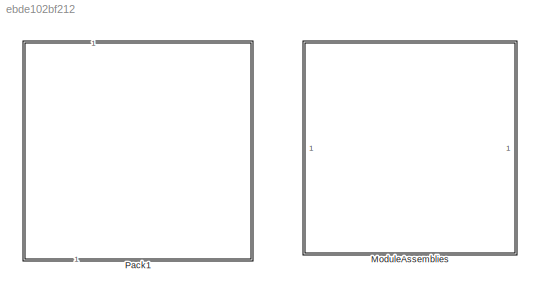
MODEL slx_ebde102bf212
KIND library
CONFIG AbsTol = auto
CONFIG EnableMultiTasking = off
CONFIG FixedStep = auto
CONFIG MaxStep = auto
CONFIG MinStep = auto
CONFIG RelTol = 1e-3
CONFIG SampleTimeConstraint = Unconstrained
CONFIG SolverName = VariableStepAuto
CONFIG StartTime = 0.0
CONFIG StopTime = 10.0
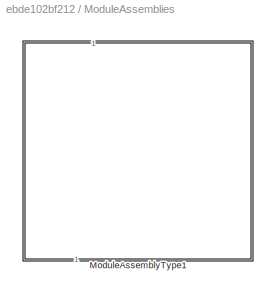
BLOCK [SubSystem] ModuleAssemblies
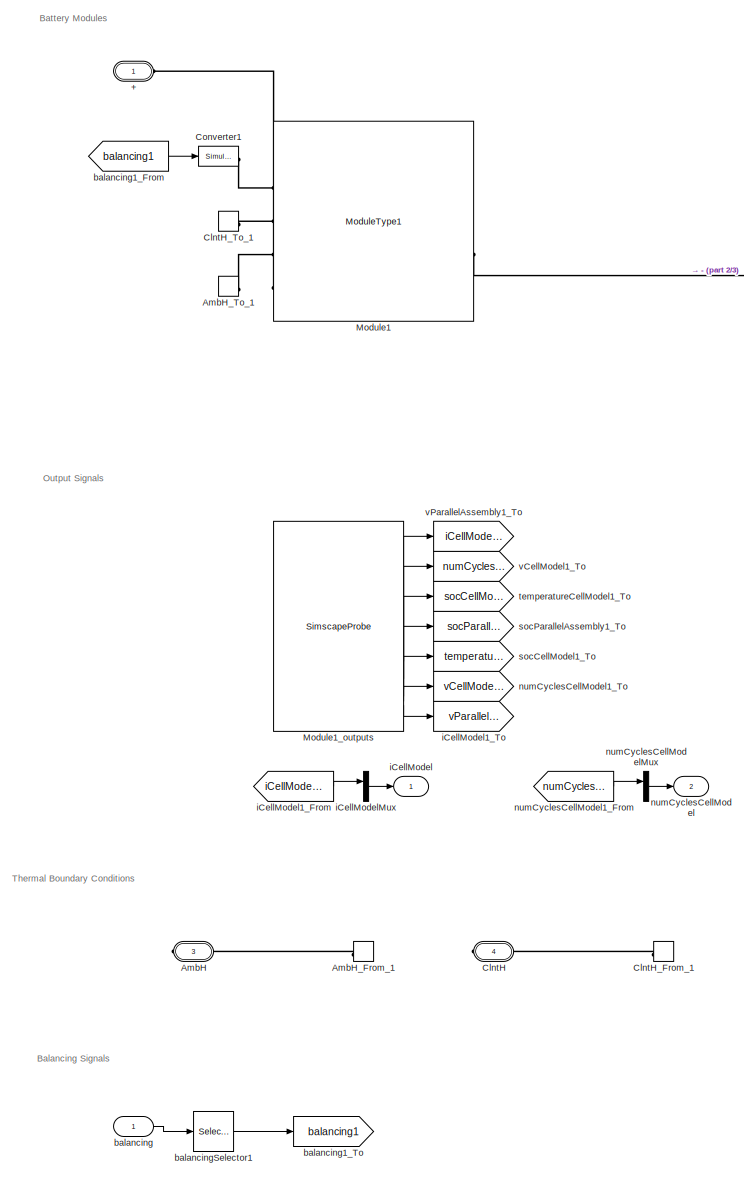
[diagram: ModuleAssemblies/ModuleAssemblyType1 - part 1/3, left side, full height]
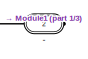
[diagram: ModuleAssemblies/ModuleAssemblyType1 - part 2/3, top right region]
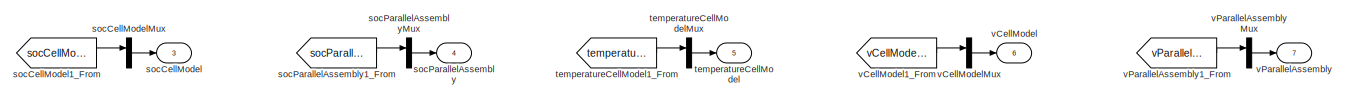
[diagram: ModuleAssemblies/ModuleAssemblyType1 - part 3/3, bottom center region]
BLOCK [SubSystem] ModuleAssemblies/ModuleAssemblyType1
  CopyFcn = battery_builder_rtmsupport('copyfcn',gcbh);
  LoadFcn = battery_builder_rtmsupport('loadfcn',gcbh);
  PortSchema = {"entries":[{"content":{"sides":[{"content":{"connectorIds":["LConn1"]},"type":"ConnectorPlacement.EquallySpacedRectSide","uuid":"76a56672-e65c-4ffc-8b13-b848ca693a1f"},{"content":{"connectorIds":["RConn1","RConn2","RConn3"],"side":"RIGHT"},"type":"ConnectorPlacement.EquallySpacedRectSide","uuid":"f1a9ec30-6091-40d6-9680-a73eaaaaa74d"},{"content":{"connectorIds":["In1"],"side":"TOP"},"type":"Conne...<+460ch>  <repeated x3 — deduplicated; at blocks: ModuleAssemblyType1, Pack1, ModuleAssembly1>
  PreCopyFcn = battery_builder_rtmsupport('precopyfcn',gcbh);
  PreDeleteFcn = battery_builder_rtmsupport('predeletefcn',gcbh);
BLOCK [PMIOPort] ModuleAssemblies/ModuleAssemblyType1/+
  Side = Left
BLOCK [PMIOPort] ModuleAssemblies/ModuleAssemblyType1/-
  Port = 2
  Side = Right
BLOCK [PMIOPort] ModuleAssemblies/ModuleAssemblyType1/AmbH
  Port = 3
  Side = Right
BLOCK [ConnectionLabel] ModuleAssemblies/ModuleAssemblyType1/AmbH_From_1
  Label = ambH_1
BLOCK [ConnectionLabel] ModuleAssemblies/ModuleAssemblyType1/AmbH_To_1
  Label = ambH_1
BLOCK [PMIOPort] ModuleAssemblies/ModuleAssemblyType1/ClntH
  Port = 4
  Side = Right
BLOCK [ConnectionLabel] ModuleAssemblies/ModuleAssemblyType1/ClntH_From_1
  Label = clntH_1
BLOCK [ConnectionLabel] ModuleAssemblies/ModuleAssemblyType1/ClntH_To_1
  Label = clntH_1
BLOCK [Reference] ModuleAssemblies/ModuleAssemblyType1/Converter1  REF=nesl_utility/Simulink-PS
Converter
  SourceBlock = nesl_utility/Simulink-PS\nConverter
  SourceType = Simulink-PS\nConverter
BLOCK [Reference] ModuleAssemblies/ModuleAssemblyType1/Module1  REF=GD_Batterymodel_4_lib/Modules/ModuleType1
  SourceBlock = GD_Batterymodel_4_lib/Modules/ModuleType1
  SourceType = ModuleType1
BLOCK [SimscapeProbe] ModuleAssemblies/ModuleAssemblyType1/Module1_outputs
  BoundBlock = 3
  Variables = {iCellModel, numCyclesCellModel, socCellModel, socParallelAssembly, temperatureCellModel, vCellModel, vParallelAssembly}
BLOCK [Inport] ModuleAssemblies/ModuleAssemblyType1/balancing
  PortDimensions = 14
BLOCK [From] ModuleAssemblies/ModuleAssemblyType1/balancing1_From
  GotoTag = balancing1
BLOCK [Goto] ModuleAssemblies/ModuleAssemblyType1/balancing1_To
  GotoTag = balancing1
BLOCK [Selector] ModuleAssemblies/ModuleAssemblyType1/balancingSelector1
  IndexOptions = Index vector (dialog)
  Indices = [1   2   3   4   5   6   7   8   9  10  11  12  13  14]
  InputPortWidth = 14
  OutputSizes = 1
BLOCK [Outport] ModuleAssemblies/ModuleAssemblyType1/iCellModel
BLOCK [From] ModuleAssemblies/ModuleAssemblyType1/iCellModel1_From
  GotoTag = iCellModel1
BLOCK [Goto] ModuleAssemblies/ModuleAssemblyType1/iCellModel1_To
  GotoTag = vParallelAssembly1
BLOCK [Mux] ModuleAssemblies/ModuleAssemblyType1/iCellModelMux
  DisplayOption = bar
  Inputs = 1
BLOCK [Outport] ModuleAssemblies/ModuleAssemblyType1/numCyclesCellModel
  Port = 2
BLOCK [From] ModuleAssemblies/ModuleAssemblyType1/numCyclesCellModel1_From
  GotoTag = numCyclesCellModel1
BLOCK [Goto] ModuleAssemblies/ModuleAssemblyType1/numCyclesCellModel1_To
  GotoTag = vCellModel1
BLOCK [Mux] ModuleAssemblies/ModuleAssemblyType1/numCyclesCellModelMux
  DisplayOption = bar
  Inputs = 1
BLOCK [Outport] ModuleAssemblies/ModuleAssemblyType1/socCellModel
  Port = 3
BLOCK [From] ModuleAssemblies/ModuleAssemblyType1/socCellModel1_From
  GotoTag = socCellModel1
BLOCK [Goto] ModuleAssemblies/ModuleAssemblyType1/socCellModel1_To
  GotoTag = temperatureCellModel1
BLOCK [Mux] ModuleAssemblies/ModuleAssemblyType1/socCellModelMux
  DisplayOption = bar
  Inputs = 1
BLOCK [Outport] ModuleAssemblies/ModuleAssemblyType1/socParallelAssembly
  Port = 4
BLOCK [From] ModuleAssemblies/ModuleAssemblyType1/socParallelAssembly1_From
  GotoTag = socParallelAssembly1
BLOCK [Goto] ModuleAssemblies/ModuleAssemblyType1/socParallelAssembly1_To
  GotoTag = socParallelAssembly1
BLOCK [Mux] ModuleAssemblies/ModuleAssemblyType1/socParallelAssemblyMux
  DisplayOption = bar
  Inputs = 1
BLOCK [Outport] ModuleAssemblies/ModuleAssemblyType1/temperatureCellModel
  Port = 5
BLOCK [From] ModuleAssemblies/ModuleAssemblyType1/temperatureCellModel1_From
  GotoTag = temperatureCellModel1
BLOCK [Goto] ModuleAssemblies/ModuleAssemblyType1/temperatureCellModel1_To
  GotoTag = socCellModel1
BLOCK [Mux] ModuleAssemblies/ModuleAssemblyType1/temperatureCellModelMux
  DisplayOption = bar
  Inputs = 1
BLOCK [Outport] ModuleAssemblies/ModuleAssemblyType1/vCellModel
  Port = 6
BLOCK [From] ModuleAssemblies/ModuleAssemblyType1/vCellModel1_From
  GotoTag = vCellModel1
BLOCK [Goto] ModuleAssemblies/ModuleAssemblyType1/vCellModel1_To
  GotoTag = numCyclesCellModel1
BLOCK [Mux] ModuleAssemblies/ModuleAssemblyType1/vCellModelMux
  DisplayOption = bar
  Inputs = 1
BLOCK [Outport] ModuleAssemblies/ModuleAssemblyType1/vParallelAssembly
  Port = 7
BLOCK [From] ModuleAssemblies/ModuleAssemblyType1/vParallelAssembly1_From
  GotoTag = vParallelAssembly1
BLOCK [Goto] ModuleAssemblies/ModuleAssemblyType1/vParallelAssembly1_To
  GotoTag = iCellModel1
BLOCK [Mux] ModuleAssemblies/ModuleAssemblyType1/vParallelAssemblyMux
  DisplayOption = bar
  Inputs = 1
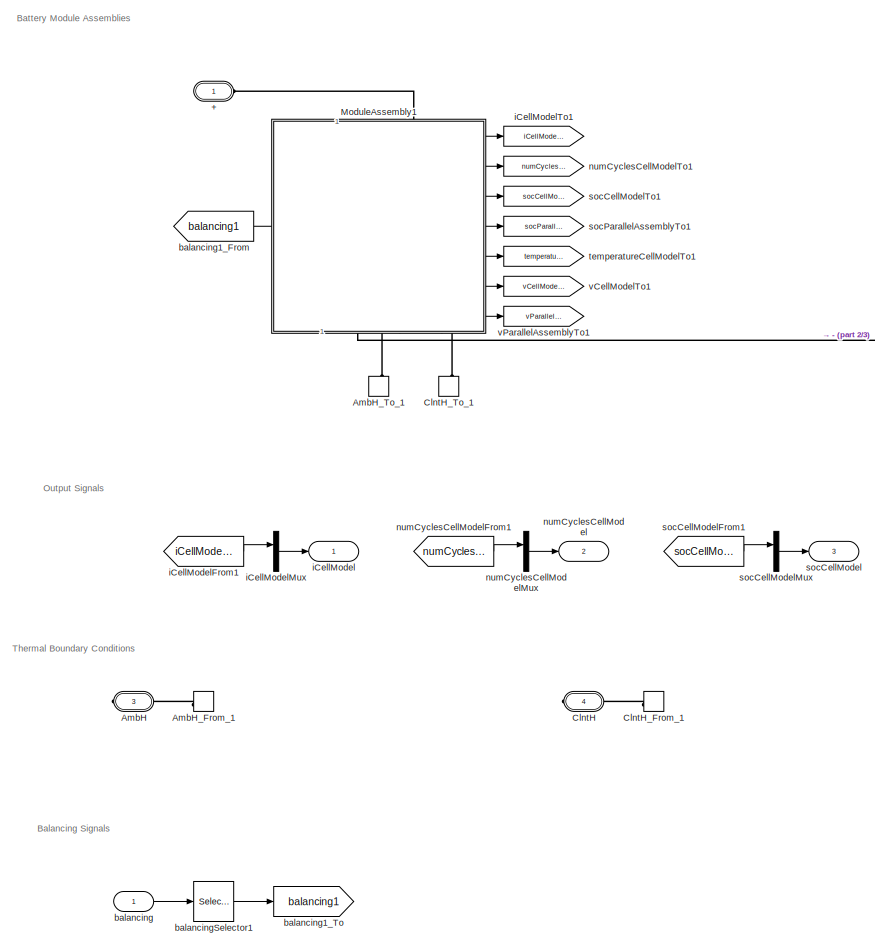
[diagram: Pack1 - part 1/3, left side, full height]
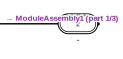
[diagram: Pack1 - part 2/3, top right region]
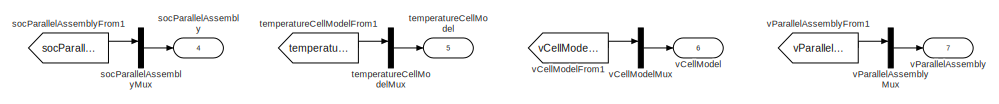
[diagram: Pack1 - part 3/3, central region]
BLOCK [SubSystem] Pack1
  CopyFcn = battery_builder_rtmsupport('copyfcn',gcbh);
  LoadFcn = battery_builder_rtmsupport('loadfcn',gcbh);
  PreCopyFcn = battery_builder_rtmsupport('precopyfcn',gcbh);
  PreDeleteFcn = battery_builder_rtmsupport('predeletefcn',gcbh);
BLOCK [PMIOPort] Pack1/+
  Side = Left
BLOCK [PMIOPort] Pack1/-
  Port = 2
  Side = Right
BLOCK [PMIOPort] Pack1/AmbH
  ConnectionType = Connection: foundation.thermal.thermal
  Port = 3
  Side = Right
BLOCK [ConnectionLabel] Pack1/AmbH_From_1
  Label = ambH_1
BLOCK [ConnectionLabel] Pack1/AmbH_To_1
  Label = ambH_1
  NameLocation = right
BLOCK [PMIOPort] Pack1/ClntH
  ConnectionType = Connection: foundation.thermal.thermal
  Port = 4
  Side = Right
BLOCK [ConnectionLabel] Pack1/ClntH_From_1
  Label = clntH_1
BLOCK [ConnectionLabel] Pack1/ClntH_To_1
  Label = clntH_1
  NameLocation = right
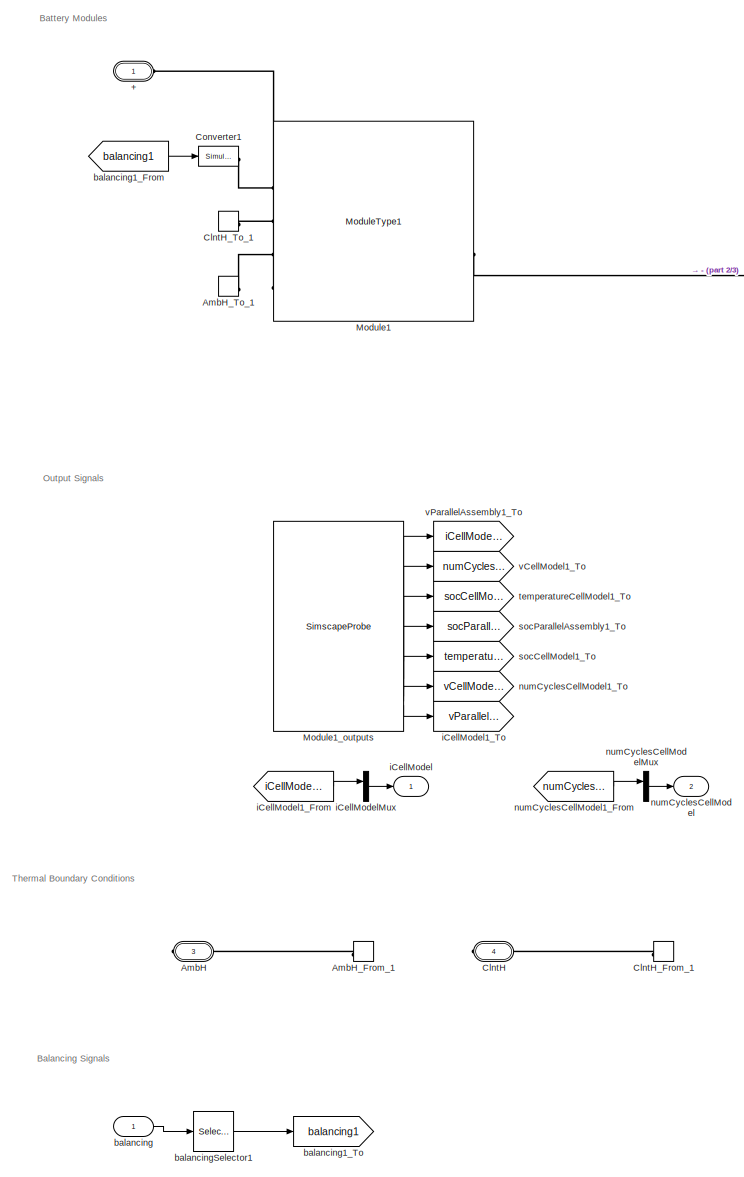
[diagram: Pack1/ModuleAssembly1 - part 1/3, left side, full height]
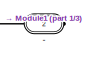
[diagram: Pack1/ModuleAssembly1 - part 2/3, top right region]
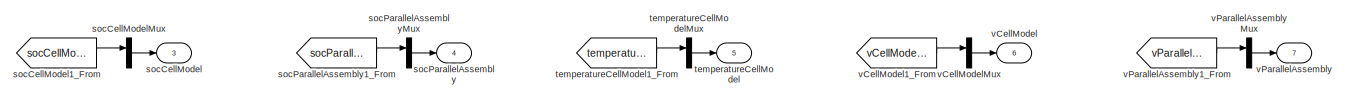
[diagram: Pack1/ModuleAssembly1 - part 3/3, bottom center region]
BLOCK [SubSystem] Pack1/ModuleAssembly1
  CopyFcn = battery_builder_rtmsupport('copyfcn',gcbh);
  LoadFcn = battery_builder_rtmsupport('loadfcn',gcbh);
  PreCopyFcn = battery_builder_rtmsupport('precopyfcn',gcbh);
  PreDeleteFcn = battery_builder_rtmsupport('predeletefcn',gcbh);
BLOCK [PMIOPort] Pack1/ModuleAssembly1/+
  Side = Left
BLOCK [PMIOPort] Pack1/ModuleAssembly1/-
  Port = 2
  Side = Right
BLOCK [PMIOPort] Pack1/ModuleAssembly1/AmbH
  Port = 3
  Side = Right
BLOCK [ConnectionLabel] Pack1/ModuleAssembly1/AmbH_From_1
  Label = ambH_1
BLOCK [ConnectionLabel] Pack1/ModuleAssembly1/AmbH_To_1
  Label = ambH_1
BLOCK [PMIOPort] Pack1/ModuleAssembly1/ClntH
  Port = 4
  Side = Right
BLOCK [ConnectionLabel] Pack1/ModuleAssembly1/ClntH_From_1
  Label = clntH_1
BLOCK [ConnectionLabel] Pack1/ModuleAssembly1/ClntH_To_1
  Label = clntH_1
BLOCK [Reference] Pack1/ModuleAssembly1/Converter1  REF=nesl_utility/Simulink-PS
Converter
  SourceBlock = nesl_utility/Simulink-PS\nConverter
  SourceType = Simulink-PS\nConverter
BLOCK [Reference] Pack1/ModuleAssembly1/Module1  REF=GD_Batterymodel_4_lib/Modules/ModuleType1
  SourceBlock = GD_Batterymodel_4_lib/Modules/ModuleType1
  SourceType = ModuleType1
BLOCK [SimscapeProbe] Pack1/ModuleAssembly1/Module1_outputs
  BoundBlock = 58
  Variables = {iCellModel, numCyclesCellModel, socCellModel, socParallelAssembly, temperatureCellModel, vCellModel, vParallelAssembly}
BLOCK [Inport] Pack1/ModuleAssembly1/balancing
  PortDimensions = 14
BLOCK [From] Pack1/ModuleAssembly1/balancing1_From
  GotoTag = balancing1
BLOCK [Goto] Pack1/ModuleAssembly1/balancing1_To
  GotoTag = balancing1
BLOCK [Selector] Pack1/ModuleAssembly1/balancingSelector1
  IndexOptions = Index vector (dialog)
  Indices = [1   2   3   4   5   6   7   8   9  10  11  12  13  14]
  InputPortWidth = 14
  OutputSizes = 1
BLOCK [Outport] Pack1/ModuleAssembly1/iCellModel
BLOCK [From] Pack1/ModuleAssembly1/iCellModel1_From
  GotoTag = iCellModel1
BLOCK [Goto] Pack1/ModuleAssembly1/iCellModel1_To
  GotoTag = vParallelAssembly1
BLOCK [Mux] Pack1/ModuleAssembly1/iCellModelMux
  DisplayOption = bar
  Inputs = 1
BLOCK [Outport] Pack1/ModuleAssembly1/numCyclesCellModel
  Port = 2
BLOCK [From] Pack1/ModuleAssembly1/numCyclesCellModel1_From
  GotoTag = numCyclesCellModel1
BLOCK [Goto] Pack1/ModuleAssembly1/numCyclesCellModel1_To
  GotoTag = vCellModel1
BLOCK [Mux] Pack1/ModuleAssembly1/numCyclesCellModelMux
  DisplayOption = bar
  Inputs = 1
BLOCK [Outport] Pack1/ModuleAssembly1/socCellModel
  Port = 3
BLOCK [From] Pack1/ModuleAssembly1/socCellModel1_From
  GotoTag = socCellModel1
BLOCK [Goto] Pack1/ModuleAssembly1/socCellModel1_To
  GotoTag = temperatureCellModel1
BLOCK [Mux] Pack1/ModuleAssembly1/socCellModelMux
  DisplayOption = bar
  Inputs = 1
BLOCK [Outport] Pack1/ModuleAssembly1/socParallelAssembly
  Port = 4
BLOCK [From] Pack1/ModuleAssembly1/socParallelAssembly1_From
  GotoTag = socParallelAssembly1
BLOCK [Goto] Pack1/ModuleAssembly1/socParallelAssembly1_To
  GotoTag = socParallelAssembly1
BLOCK [Mux] Pack1/ModuleAssembly1/socParallelAssemblyMux
  DisplayOption = bar
  Inputs = 1
BLOCK [Outport] Pack1/ModuleAssembly1/temperatureCellModel
  Port = 5
BLOCK [From] Pack1/ModuleAssembly1/temperatureCellModel1_From
  GotoTag = temperatureCellModel1
BLOCK [Goto] Pack1/ModuleAssembly1/temperatureCellModel1_To
  GotoTag = socCellModel1
BLOCK [Mux] Pack1/ModuleAssembly1/temperatureCellModelMux
  DisplayOption = bar
  Inputs = 1
BLOCK [Outport] Pack1/ModuleAssembly1/vCellModel
  Port = 6
BLOCK [From] Pack1/ModuleAssembly1/vCellModel1_From
  GotoTag = vCellModel1
BLOCK [Goto] Pack1/ModuleAssembly1/vCellModel1_To
  GotoTag = numCyclesCellModel1
BLOCK [Mux] Pack1/ModuleAssembly1/vCellModelMux
  DisplayOption = bar
  Inputs = 1
BLOCK [Outport] Pack1/ModuleAssembly1/vParallelAssembly
  Port = 7
BLOCK [From] Pack1/ModuleAssembly1/vParallelAssembly1_From
  GotoTag = vParallelAssembly1
BLOCK [Goto] Pack1/ModuleAssembly1/vParallelAssembly1_To
  GotoTag = iCellModel1
BLOCK [Mux] Pack1/ModuleAssembly1/vParallelAssemblyMux
  DisplayOption = bar
  Inputs = 1
BLOCK [Inport] Pack1/balancing
  PortDimensions = 14
BLOCK [From] Pack1/balancing1_From
  GotoTag = balancing1
BLOCK [Goto] Pack1/balancing1_To
  GotoTag = balancing1
BLOCK [Selector] Pack1/balancingSelector1
  IndexOptions = Index vector (dialog)
  Indices = [1   2   3   4   5   6   7   8   9  10  11  12  13  14]
  InputPortWidth = 14
  OutputSizes = 1
BLOCK [Outport] Pack1/iCellModel
BLOCK [From] Pack1/iCellModelFrom1
  GotoTag = iCellModel1
BLOCK [Mux] Pack1/iCellModelMux
  DisplayOption = bar
  Inputs = 1
BLOCK [Goto] Pack1/iCellModelTo1
  GotoTag = iCellModel1
BLOCK [Outport] Pack1/numCyclesCellModel
  Port = 2
BLOCK [From] Pack1/numCyclesCellModelFrom1
  GotoTag = numCyclesCellModel1
BLOCK [Mux] Pack1/numCyclesCellModelMux
  DisplayOption = bar
  Inputs = 1
BLOCK [Goto] Pack1/numCyclesCellModelTo1
  GotoTag = numCyclesCellModel1
BLOCK [Outport] Pack1/socCellModel
  Port = 3
BLOCK [From] Pack1/socCellModelFrom1
  GotoTag = socCellModel1
BLOCK [Mux] Pack1/socCellModelMux
  DisplayOption = bar
  Inputs = 1
BLOCK [Goto] Pack1/socCellModelTo1
  GotoTag = socCellModel1
BLOCK [Outport] Pack1/socParallelAssembly
  Port = 4
BLOCK [From] Pack1/socParallelAssemblyFrom1
  GotoTag = socParallelAssembly1
BLOCK [Mux] Pack1/socParallelAssemblyMux
  DisplayOption = bar
  Inputs = 1
BLOCK [Goto] Pack1/socParallelAssemblyTo1
  GotoTag = socParallelAssembly1
BLOCK [Outport] Pack1/temperatureCellModel
  Port = 5
BLOCK [From] Pack1/temperatureCellModelFrom1
  GotoTag = temperatureCellModel1
BLOCK [Mux] Pack1/temperatureCellModelMux
  DisplayOption = bar
  Inputs = 1
BLOCK [Goto] Pack1/temperatureCellModelTo1
  GotoTag = temperatureCellModel1
BLOCK [Outport] Pack1/vCellModel
  Port = 6
BLOCK [From] Pack1/vCellModelFrom1
  GotoTag = vCellModel1
BLOCK [Mux] Pack1/vCellModelMux
  DisplayOption = bar
  Inputs = 1
BLOCK [Goto] Pack1/vCellModelTo1
  GotoTag = vCellModel1
BLOCK [Outport] Pack1/vParallelAssembly
  Port = 7
BLOCK [From] Pack1/vParallelAssemblyFrom1
  GotoTag = vParallelAssembly1
BLOCK [Mux] Pack1/vParallelAssemblyMux
  DisplayOption = bar
  Inputs = 1
BLOCK [Goto] Pack1/vParallelAssemblyTo1
  GotoTag = vParallelAssembly1
ANNOTATION ModuleAssemblies/ModuleAssemblyType1: Balancing Signals
ANNOTATION ModuleAssemblies/ModuleAssemblyType1: Battery Modules
ANNOTATION ModuleAssemblies/ModuleAssemblyType1: Output Signals
ANNOTATION ModuleAssemblies/ModuleAssemblyType1: Thermal Boundary Conditions
ANNOTATION Pack1: Balancing Signals
ANNOTATION Pack1: Battery Module Assemblies
ANNOTATION Pack1: Output Signals
ANNOTATION Pack1: Thermal Boundary Conditions
ANNOTATION Pack1/ModuleAssembly1: Balancing Signals
ANNOTATION Pack1/ModuleAssembly1: Battery Modules
ANNOTATION Pack1/ModuleAssembly1: Output Signals
ANNOTATION Pack1/ModuleAssembly1: Thermal Boundary Conditions
LINE ModuleAssemblies/ModuleAssemblyType1/Module1_outputs:1 -> ModuleAssemblies/ModuleAssemblyType1/vParallelAssembly1_To:1
LINE ModuleAssemblies/ModuleAssemblyType1/Module1_outputs:2 -> ModuleAssemblies/ModuleAssemblyType1/vCellModel1_To:1
LINE ModuleAssemblies/ModuleAssemblyType1/Module1_outputs:3 -> ModuleAssemblies/ModuleAssemblyType1/temperatureCellModel1_To:1
LINE ModuleAssemblies/ModuleAssemblyType1/Module1_outputs:4 -> ModuleAssemblies/ModuleAssemblyType1/socParallelAssembly1_To:1
LINE ModuleAssemblies/ModuleAssemblyType1/Module1_outputs:5 -> ModuleAssemblies/ModuleAssemblyType1/socCellModel1_To:1
LINE ModuleAssemblies/ModuleAssemblyType1/Module1_outputs:6 -> ModuleAssemblies/ModuleAssemblyType1/numCyclesCellModel1_To:1
LINE ModuleAssemblies/ModuleAssemblyType1/Module1_outputs:7 -> ModuleAssemblies/ModuleAssemblyType1/iCellModel1_To:1
LINE ModuleAssemblies/ModuleAssemblyType1/balancing1_From:1 -> ModuleAssemblies/ModuleAssemblyType1/Converter1:1
LINE ModuleAssemblies/ModuleAssemblyType1/balancing:1 -> ModuleAssemblies/ModuleAssemblyType1/balancingSelector1:1
LINE ModuleAssemblies/ModuleAssemblyType1/balancingSelector1:1 -> ModuleAssemblies/ModuleAssemblyType1/balancing1_To:1
LINE ModuleAssemblies/ModuleAssemblyType1/iCellModel1_From:1 -> ModuleAssemblies/ModuleAssemblyType1/iCellModelMux:1
LINE ModuleAssemblies/ModuleAssemblyType1/iCellModelMux:1 -> ModuleAssemblies/ModuleAssemblyType1/iCellModel:1
LINE ModuleAssemblies/ModuleAssemblyType1/numCyclesCellModel1_From:1 -> ModuleAssemblies/ModuleAssemblyType1/numCyclesCellModelMux:1
LINE ModuleAssemblies/ModuleAssemblyType1/numCyclesCellModelMux:1 -> ModuleAssemblies/ModuleAssemblyType1/numCyclesCellModel:1
LINE ModuleAssemblies/ModuleAssemblyType1/socCellModel1_From:1 -> ModuleAssemblies/ModuleAssemblyType1/socCellModelMux:1
LINE ModuleAssemblies/ModuleAssemblyType1/socCellModelMux:1 -> ModuleAssemblies/ModuleAssemblyType1/socCellModel:1
LINE ModuleAssemblies/ModuleAssemblyType1/socParallelAssembly1_From:1 -> ModuleAssemblies/ModuleAssemblyType1/socParallelAssemblyMux:1
LINE ModuleAssemblies/ModuleAssemblyType1/socParallelAssemblyMux:1 -> ModuleAssemblies/ModuleAssemblyType1/socParallelAssembly:1
LINE ModuleAssemblies/ModuleAssemblyType1/temperatureCellModel1_From:1 -> ModuleAssemblies/ModuleAssemblyType1/temperatureCellModelMux:1
LINE ModuleAssemblies/ModuleAssemblyType1/temperatureCellModelMux:1 -> ModuleAssemblies/ModuleAssemblyType1/temperatureCellModel:1
LINE ModuleAssemblies/ModuleAssemblyType1/vCellModel1_From:1 -> ModuleAssemblies/ModuleAssemblyType1/vCellModelMux:1
LINE ModuleAssemblies/ModuleAssemblyType1/vCellModelMux:1 -> ModuleAssemblies/ModuleAssemblyType1/vCellModel:1
LINE ModuleAssemblies/ModuleAssemblyType1/vParallelAssembly1_From:1 -> ModuleAssemblies/ModuleAssemblyType1/vParallelAssemblyMux:1
LINE ModuleAssemblies/ModuleAssemblyType1/vParallelAssemblyMux:1 -> ModuleAssemblies/ModuleAssemblyType1/vParallelAssembly:1
LINE Pack1/ModuleAssembly1/Module1_outputs:1 -> Pack1/ModuleAssembly1/vParallelAssembly1_To:1
LINE Pack1/ModuleAssembly1/Module1_outputs:2 -> Pack1/ModuleAssembly1/vCellModel1_To:1
LINE Pack1/ModuleAssembly1/Module1_outputs:3 -> Pack1/ModuleAssembly1/temperatureCellModel1_To:1
LINE Pack1/ModuleAssembly1/Module1_outputs:4 -> Pack1/ModuleAssembly1/socParallelAssembly1_To:1
LINE Pack1/ModuleAssembly1/Module1_outputs:5 -> Pack1/ModuleAssembly1/socCellModel1_To:1
LINE Pack1/ModuleAssembly1/Module1_outputs:6 -> Pack1/ModuleAssembly1/numCyclesCellModel1_To:1
LINE Pack1/ModuleAssembly1/Module1_outputs:7 -> Pack1/ModuleAssembly1/iCellModel1_To:1
LINE Pack1/ModuleAssembly1/balancing1_From:1 -> Pack1/ModuleAssembly1/Converter1:1
LINE Pack1/ModuleAssembly1/balancing:1 -> Pack1/ModuleAssembly1/balancingSelector1:1
LINE Pack1/ModuleAssembly1/balancingSelector1:1 -> Pack1/ModuleAssembly1/balancing1_To:1
LINE Pack1/ModuleAssembly1/iCellModel1_From:1 -> Pack1/ModuleAssembly1/iCellModelMux:1
LINE Pack1/ModuleAssembly1/iCellModelMux:1 -> Pack1/ModuleAssembly1/iCellModel:1
LINE Pack1/ModuleAssembly1/numCyclesCellModel1_From:1 -> Pack1/ModuleAssembly1/numCyclesCellModelMux:1
LINE Pack1/ModuleAssembly1/numCyclesCellModelMux:1 -> Pack1/ModuleAssembly1/numCyclesCellModel:1
LINE Pack1/ModuleAssembly1/socCellModel1_From:1 -> Pack1/ModuleAssembly1/socCellModelMux:1
LINE Pack1/ModuleAssembly1/socCellModelMux:1 -> Pack1/ModuleAssembly1/socCellModel:1
LINE Pack1/ModuleAssembly1/socParallelAssembly1_From:1 -> Pack1/ModuleAssembly1/socParallelAssemblyMux:1
LINE Pack1/ModuleAssembly1/socParallelAssemblyMux:1 -> Pack1/ModuleAssembly1/socParallelAssembly:1
LINE Pack1/ModuleAssembly1/temperatureCellModel1_From:1 -> Pack1/ModuleAssembly1/temperatureCellModelMux:1
LINE Pack1/ModuleAssembly1/temperatureCellModelMux:1 -> Pack1/ModuleAssembly1/temperatureCellModel:1
LINE Pack1/ModuleAssembly1/vCellModel1_From:1 -> Pack1/ModuleAssembly1/vCellModelMux:1
LINE Pack1/ModuleAssembly1/vCellModelMux:1 -> Pack1/ModuleAssembly1/vCellModel:1
LINE Pack1/ModuleAssembly1/vParallelAssembly1_From:1 -> Pack1/ModuleAssembly1/vParallelAssemblyMux:1
LINE Pack1/ModuleAssembly1/vParallelAssemblyMux:1 -> Pack1/ModuleAssembly1/vParallelAssembly:1
LINE Pack1/ModuleAssembly1:1 -> Pack1/iCellModelTo1:1
LINE Pack1/ModuleAssembly1:2 -> Pack1/numCyclesCellModelTo1:1
LINE Pack1/ModuleAssembly1:3 -> Pack1/socCellModelTo1:1
LINE Pack1/ModuleAssembly1:4 -> Pack1/socParallelAssemblyTo1:1
LINE Pack1/ModuleAssembly1:5 -> Pack1/temperatureCellModelTo1:1
LINE Pack1/ModuleAssembly1:6 -> Pack1/vCellModelTo1:1
LINE Pack1/ModuleAssembly1:7 -> Pack1/vParallelAssemblyTo1:1
LINE Pack1/balancing1_From:1 -> Pack1/ModuleAssembly1:1
LINE Pack1/balancing:1 -> Pack1/balancingSelector1:1
LINE Pack1/balancingSelector1:1 -> Pack1/balancing1_To:1
LINE Pack1/iCellModelFrom1:1 -> Pack1/iCellModelMux:1
LINE Pack1/iCellModelMux:1 -> Pack1/iCellModel:1
LINE Pack1/numCyclesCellModelFrom1:1 -> Pack1/numCyclesCellModelMux:1
LINE Pack1/numCyclesCellModelMux:1 -> Pack1/numCyclesCellModel:1
LINE Pack1/socCellModelFrom1:1 -> Pack1/socCellModelMux:1
LINE Pack1/socCellModelMux:1 -> Pack1/socCellModel:1
LINE Pack1/socParallelAssemblyFrom1:1 -> Pack1/socParallelAssemblyMux:1
LINE Pack1/socParallelAssemblyMux:1 -> Pack1/socParallelAssembly:1
LINE Pack1/temperatureCellModelFrom1:1 -> Pack1/temperatureCellModelMux:1
LINE Pack1/temperatureCellModelMux:1 -> Pack1/temperatureCellModel:1
LINE Pack1/vCellModelFrom1:1 -> Pack1/vCellModelMux:1
LINE Pack1/vCellModelMux:1 -> Pack1/vCellModel:1
LINE Pack1/vParallelAssemblyFrom1:1 -> Pack1/vParallelAssemblyMux:1
LINE Pack1/vParallelAssemblyMux:1 -> Pack1/vParallelAssembly:1
PLINE ModuleAssemblies/ModuleAssemblyType1/+:RConn1 -- ModuleAssemblies/ModuleAssemblyType1/Module1:LConn4
PLINE ModuleAssemblies/ModuleAssemblyType1/-:RConn1 -- ModuleAssemblies/ModuleAssemblyType1/Module1:RConn1
PLINE ModuleAssemblies/ModuleAssemblyType1/AmbH:RConn1 -- ModuleAssemblies/ModuleAssemblyType1/AmbH_From_1:LConn1
PLINE ModuleAssemblies/ModuleAssemblyType1/AmbH_To_1:LConn1 -- ModuleAssemblies/ModuleAssemblyType1/Module1:LConn3
PLINE ModuleAssemblies/ModuleAssemblyType1/ClntH:RConn1 -- ModuleAssemblies/ModuleAssemblyType1/ClntH_From_1:LConn1
PLINE ModuleAssemblies/ModuleAssemblyType1/ClntH_To_1:LConn1 -- ModuleAssemblies/ModuleAssemblyType1/Module1:LConn2
PLINE ModuleAssemblies/ModuleAssemblyType1/Converter1:RConn1 -- ModuleAssemblies/ModuleAssemblyType1/Module1:LConn1
PLINE Pack1/+:RConn1 -- Pack1/ModuleAssembly1:LConn1
PLINE Pack1/-:RConn1 -- Pack1/ModuleAssembly1:RConn1
PLINE Pack1/AmbH:RConn1 -- Pack1/AmbH_From_1:LConn1
PLINE Pack1/AmbH_To_1:LConn1 -- Pack1/ModuleAssembly1:RConn2
PLINE Pack1/ClntH:RConn1 -- Pack1/ClntH_From_1:LConn1
PLINE Pack1/ClntH_To_1:LConn1 -- Pack1/ModuleAssembly1:RConn3
PLINE Pack1/ModuleAssembly1/+:RConn1 -- Pack1/ModuleAssembly1/Module1:LConn4
PLINE Pack1/ModuleAssembly1/-:RConn1 -- Pack1/ModuleAssembly1/Module1:RConn1
PLINE Pack1/ModuleAssembly1/AmbH:RConn1 -- Pack1/ModuleAssembly1/AmbH_From_1:LConn1
PLINE Pack1/ModuleAssembly1/AmbH_To_1:LConn1 -- Pack1/ModuleAssembly1/Module1:LConn3
PLINE Pack1/ModuleAssembly1/ClntH:RConn1 -- Pack1/ModuleAssembly1/ClntH_From_1:LConn1
PLINE Pack1/ModuleAssembly1/ClntH_To_1:LConn1 -- Pack1/ModuleAssembly1/Module1:LConn2
PLINE Pack1/ModuleAssembly1/Converter1:RConn1 -- Pack1/ModuleAssembly1/Module1:LConn1
